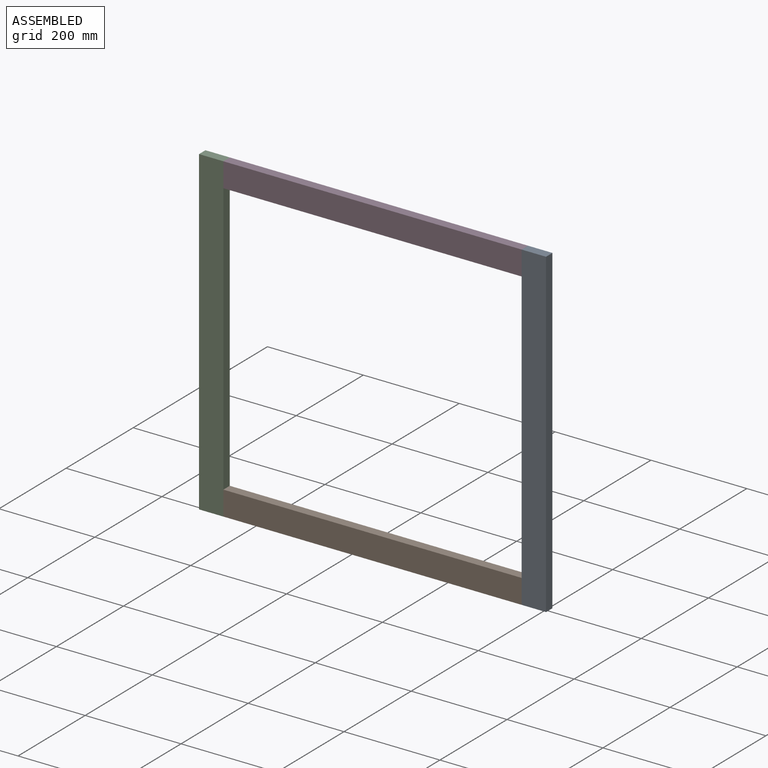
[diagram: assembled view]
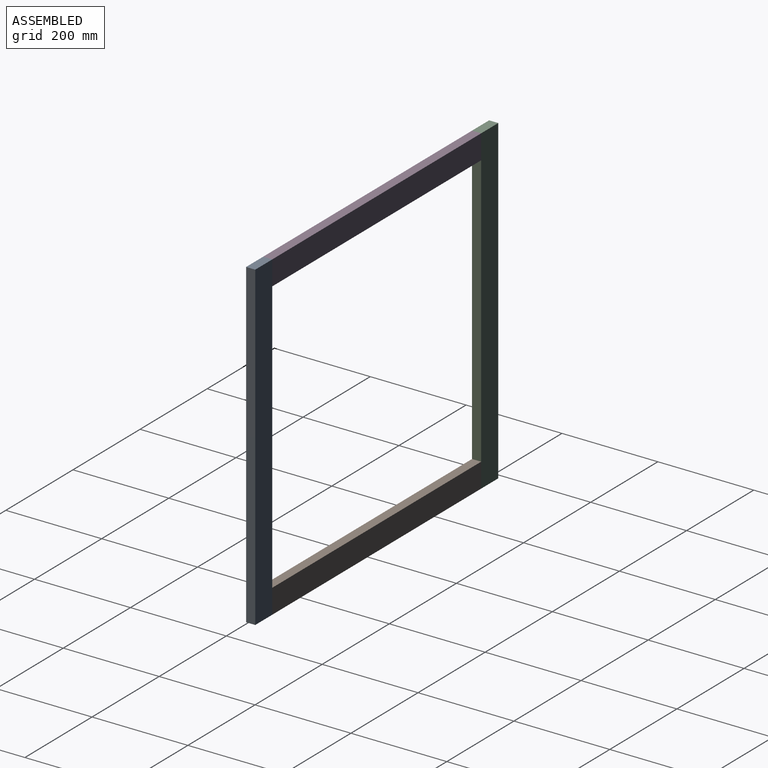
[diagram: assembled view, second angle]
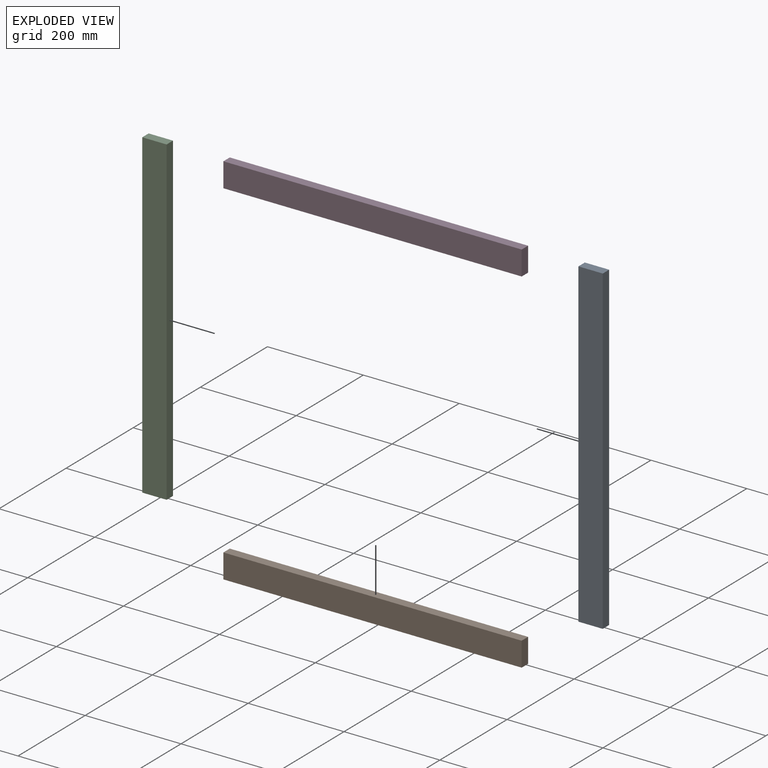
[diagram: exploded view]
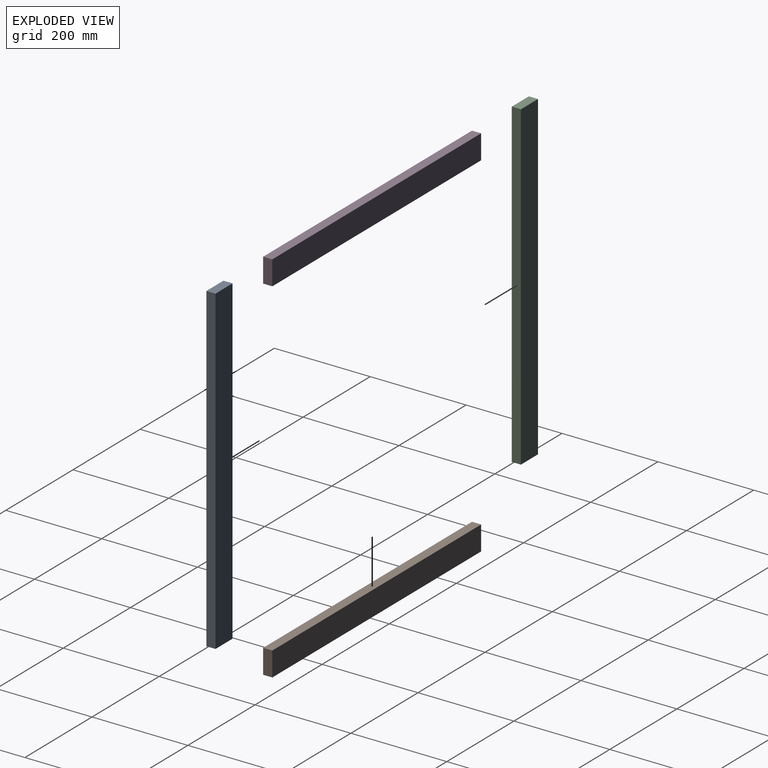
[diagram: exploded view, second angle]
ASSEMBLY  parts=4 mates=9
PART A: 6 faces, bbox 50.8x19.1x669.9 mm
  f0: plane 669.93x50.8mm, normal (0,1,0), area 34032.2mm2, adj f1,f3,f4,f5
  f1: plane 50.8x19.05mm, normal (0,0,1), area 967.7mm2, adj f0,f2,f4,f5
  f2: plane 669.93x50.8mm, normal (0,-1,0), area 34032.2mm2, adj f1,f3,f4,f5
  f3: plane 50.8x19.05mm, normal (0,0,-1), area 967.7mm2, adj f0,f2,f4,f5
  f4: plane 669.93x19.05mm, normal (1,0,0), area 12762.1mm2, adj f0,f1,f2,f3
  f5: plane 669.93x19.05mm, normal (-1,0,0), area 12762.1mm2, adj f0,f1,f2,f3
PART B: 6 faces, bbox 622.3x19.1x50.8 mm
  f0: plane 622.3x50.8mm, normal (0,1,0), area 31612.8mm2, adj f1,f3,f4,f5
  f1: plane 50.8x19.05mm, normal (1,0,0), area 967.7mm2, adj f0,f2,f4,f5
  f2: plane 622.3x50.8mm, normal (0,-1,0), area 31612.8mm2, adj f1,f3,f4,f5
  f3: plane 50.8x19.05mm, normal (-1,0,0), area 967.7mm2, adj f0,f2,f4,f5
  f4: plane 622.3x19.05mm, normal (0,0,-1), area 11854.8mm2, adj f0,f1,f2,f3
  f5: plane 622.3x19.05mm, normal (0,0,1), area 11854.8mm2, adj f0,f1,f2,f3
PART C: same geometry as A
PART D: same geometry as B
PLACE A t=(467.65,-198.77,182.7)mm
PLACE B t=(-205.45,-198.77,-436.43)mm
PLACE C t=(-205.45,-198.77,182.7)mm
PLACE D rot(axis=(0,-1,0),180deg) t=(2220.25,-198.77,131.9)mm
MATE planar D.f4 <-> C.f1  axis (0,0,1) through (1007.4,369.55,182.7)mm
MATE planar C.f4 <-> D.f1  axis (1,0,0) through (696.25,369.55,-152.26)mm
MATE planar B.f4 <-> A.f3  axis (0,0,-1) through (1007.4,369.55,-487.23)mm
MATE planar B.f1 <-> A.f5  axis (1,0,0) through (1318.55,369.55,-461.83)mm
MATE planar B.f3 <-> C.f4  axis (-1,0,0) through (696.25,369.55,-461.83)mm
MATE planar A.f0 <-> B.f0  axis (0,1,0) through (1343.95,379.08,-152.26)mm
MATE planar B.f0 <-> C.f0  axis (0,1,0) through (1007.4,379.08,-461.83)mm
MATE planar D.f0 <-> A.f0  axis (0,1,0) through (1007.4,379.08,157.3)mm
MATE planar B.f4 <-> C.f3  axis (0,0,-1) through (1007.4,369.55,-487.23)mm
